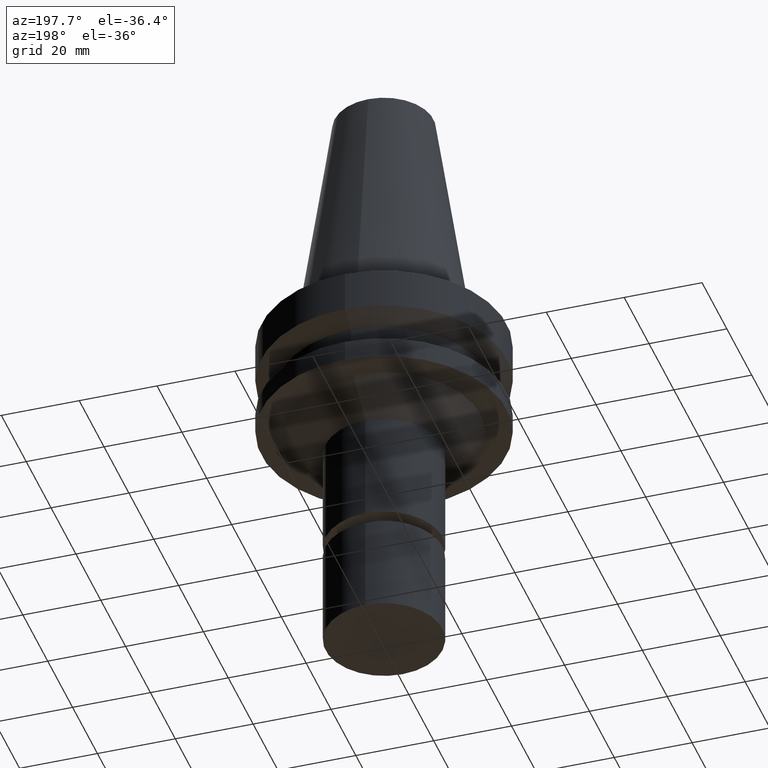
[diagram: clean part render]
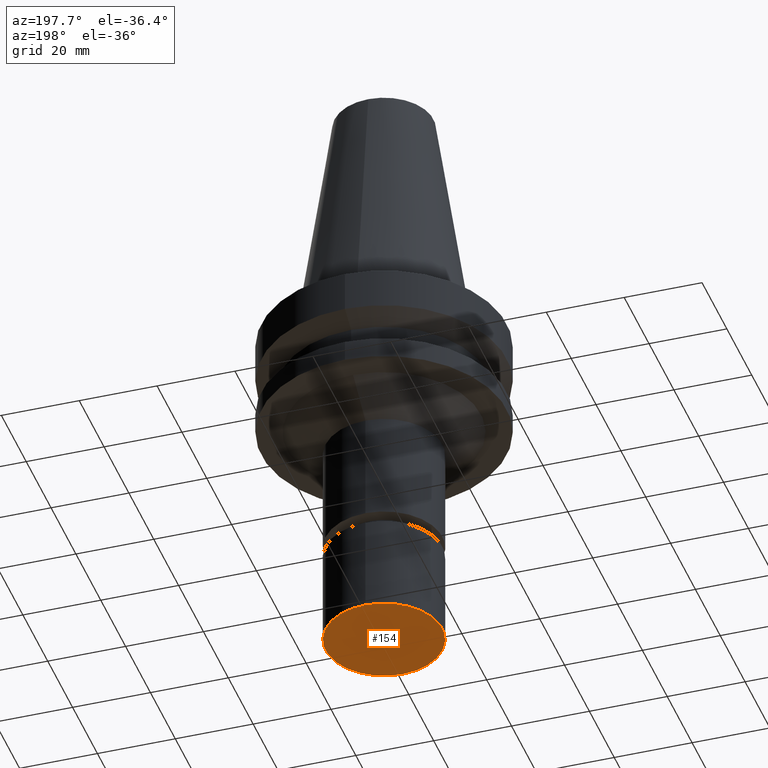
[diagram: same view with one face highlighted and labeled with its STEP entity id]
A machine part, auxiliary view. The second image highlights one B-rep face of the part: STEP entity #154.
In plain terms, the highlighted planar face has unit normal (0, 0, -1).
Its self-contained STEP definition (entity closure, byte-faithful):
#88=EDGE_CURVE('Unnamed[1]',#221,#221,#222,.T.);
#154=ADVANCED_FACE('Unnamed[1]',(#320),#321,.T.);
#221=VERTEX_POINT('',#403);
#222=CIRCLE('',#404,14.9999999999999);
#320=FACE_OUTER_BOUND('',#525,.T.);
#321=PLANE('',#526);
#403=CARTESIAN_POINT('',(5.51091059616309E-015,15.0,-90.0));
#404=AXIS2_PLACEMENT_3D('',#601,#602,#603);
#525=EDGE_LOOP('',(#709));
#526=AXIS2_PLACEMENT_3D('',#710,#711,#712);
#601=CARTESIAN_POINT('',(5.51091059616309E-015,6.97774449716512E-014,-90.0));
#602=DIRECTION('',(6.12323399573677E-017,-4.7256395665028E-017,-1.0));
#603=DIRECTION('',(-1.93353304624816E-033,1.0,-4.72563956650279E-017));
#709=ORIENTED_EDGE('',*,*,#88,.T.);
#710=CARTESIAN_POINT('',(5.51091059616309E-015,7.50000000000003,-90.0));
#711=DIRECTION('',(6.12323399573677E-017,1.22464679914735E-016,-1.0));
#712=DIRECTION('',(-1.23259516440783E-032,1.0,1.22464679914735E-016));